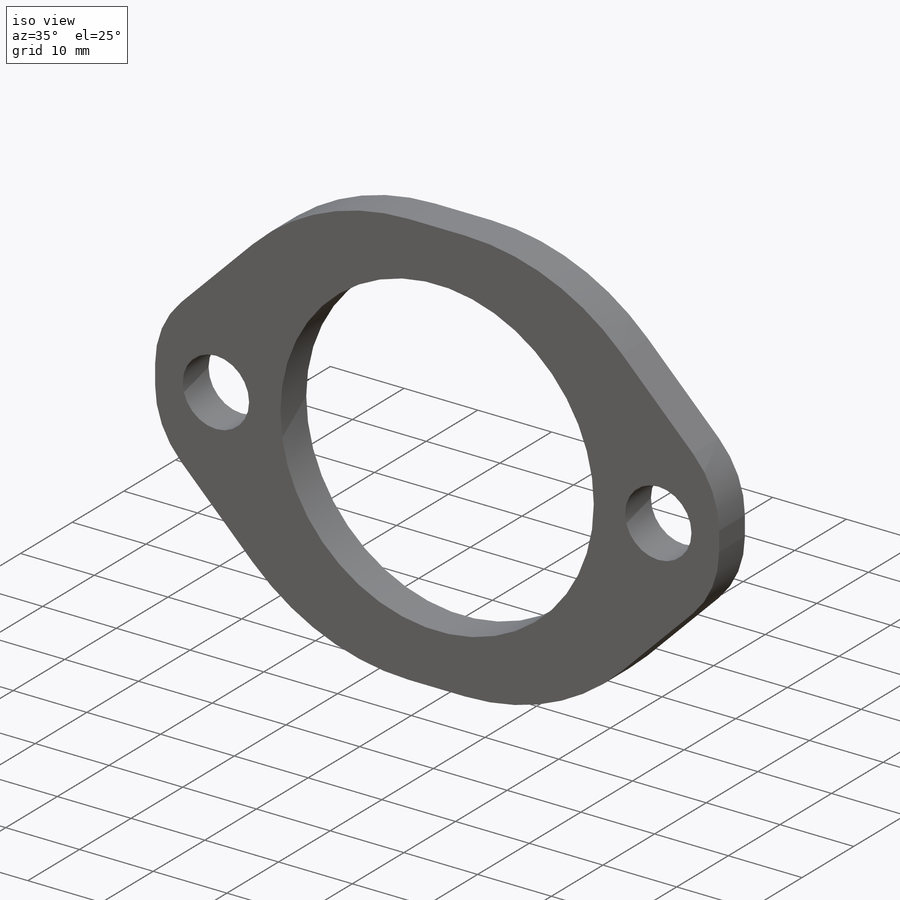
[diagram: iso view]
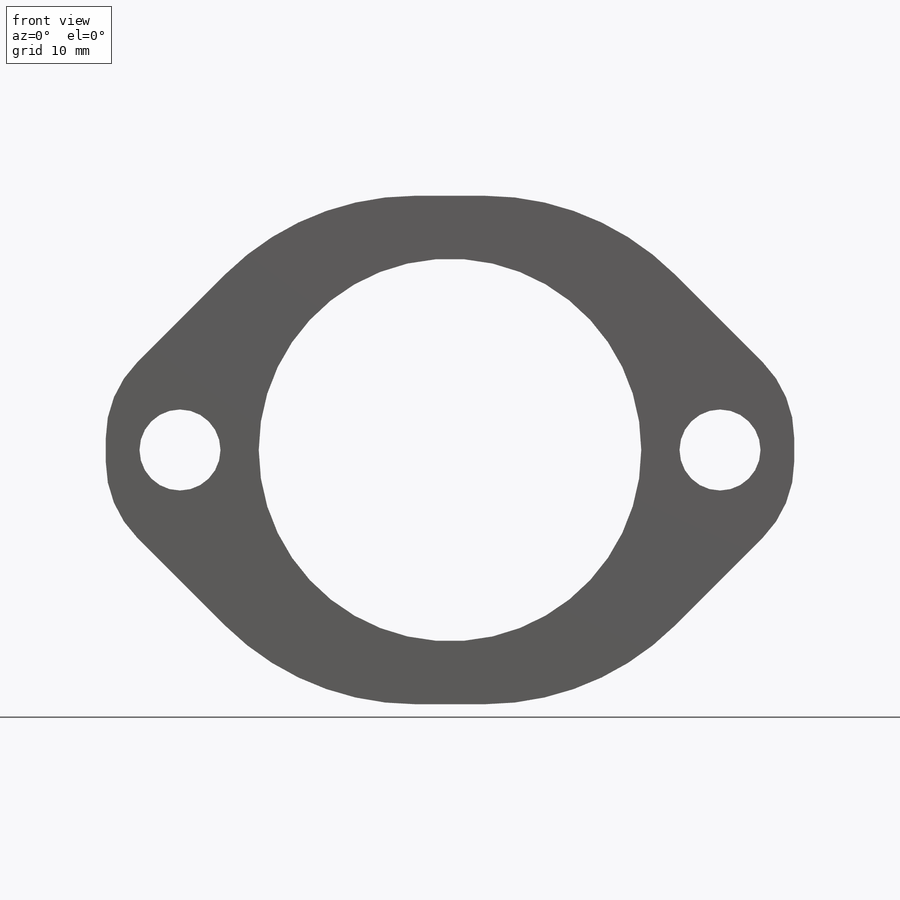
[diagram: front view]
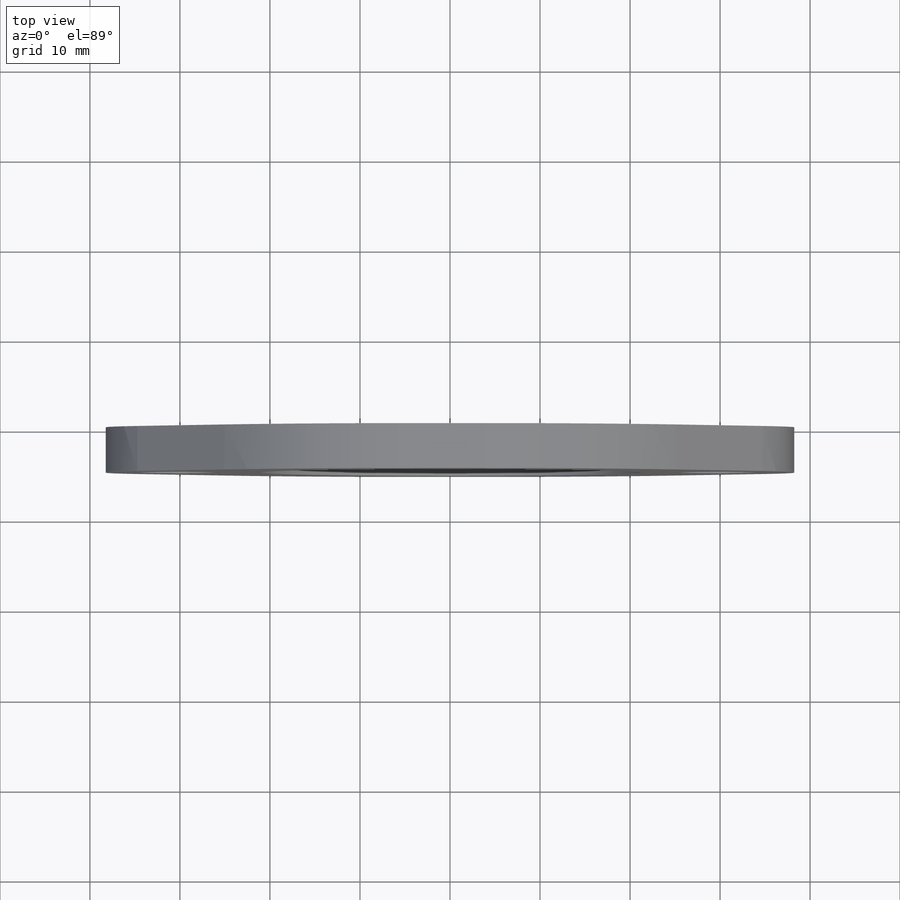
[diagram: top view]
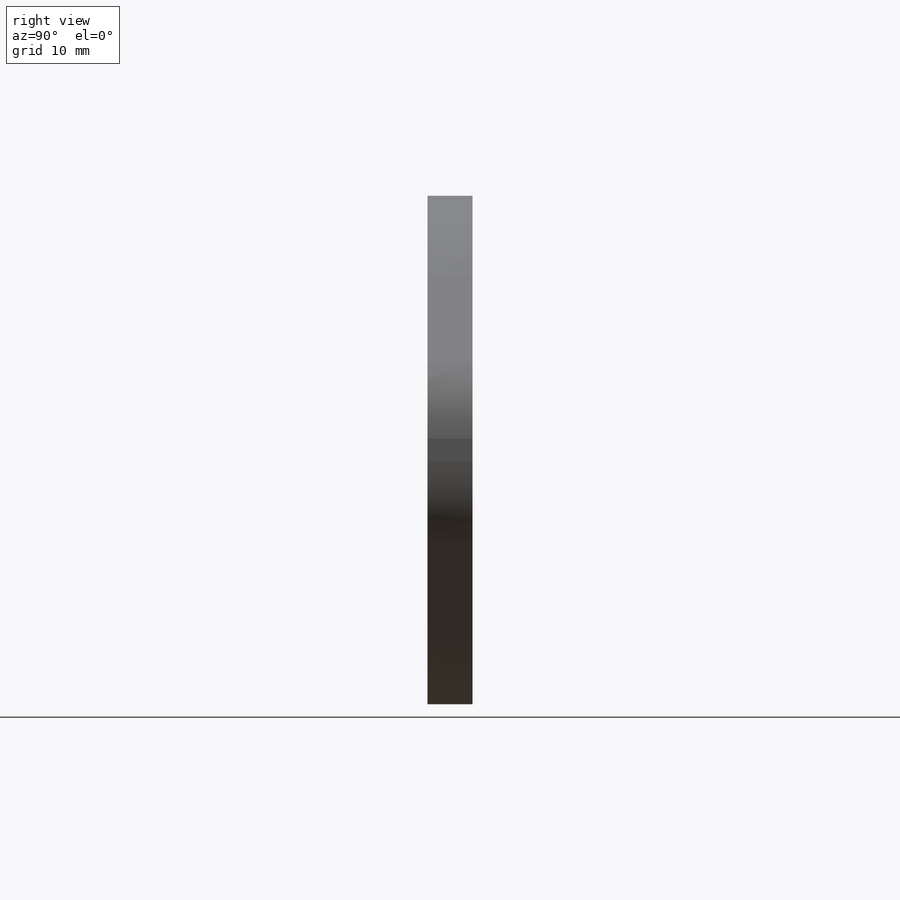
[diagram: right view]
SOLIDWORKS PART (.sldprt)
format: sldprt  version: not decoded by parser v0  size: 208,896 bytes
history: native  units: mm
features: fillet x8, chamfer x4, plane x3, material x1, sketch x1, extrude x1 (+10 scaffold rows collapsed)
feature tree (28):
  scaffold x10  (default folders/planes/origin — collapsed)
  material  "Matériau <non spécifié>"
  plane  "Plan de face"
  plane  "Plan de dessus"
  plane  "Plan de droite"
  sketch  "Esquisse1"  dims[c1.D1=42.5mm c1.D4=9.0mm c1.D5=9.0mm c1.D2=56.5mm c1.D3=76.5mm c2.D5=~6.07894mm c2.D6=30.0mm c2.D7=30.0mm]
  extrude  "Boss.-Extru.1"  Depth=5mm
  chamfer  "Chanfrein1"  Distance=22mm Angle=45deg
  chamfer  "Chanfrein2"  Distance=22mm Angle=45deg
  chamfer  "Chanfrein3"  Distance=22mm Angle=45deg
  chamfer  "Chanfrein4"  Distance=22mm Angle=45deg
  fillet  "Congé2"  Radius=30mm
  fillet  "Congé3"  Radius=30mm
  fillet  "Congé4"  Radius=30mm
  fillet  "Congé5"  Radius=30mm
  fillet  "Congé6"  Radius=12mm
  fillet  "Congé7"  Radius=12mm
  fillet  "Congé8"  Radius=12mm
  fillet  "Congé9"  Radius=12mm
decode coverage: 14 of 14 modeling features carry decoded parameters
note: ~ marks probable driven/reference dimensions
note: suppression state not decoded; provenance and decode notes live in map.json
